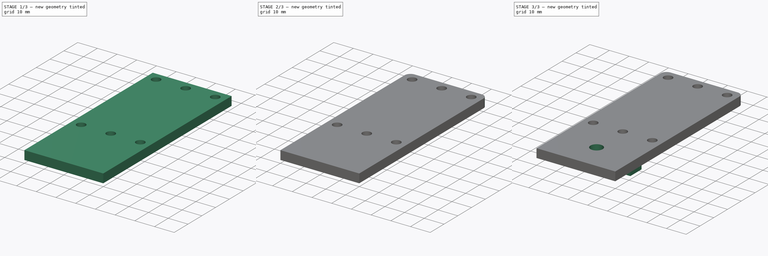
[diagram: build sequence overview — one tinted view per stage of 3, left to right]
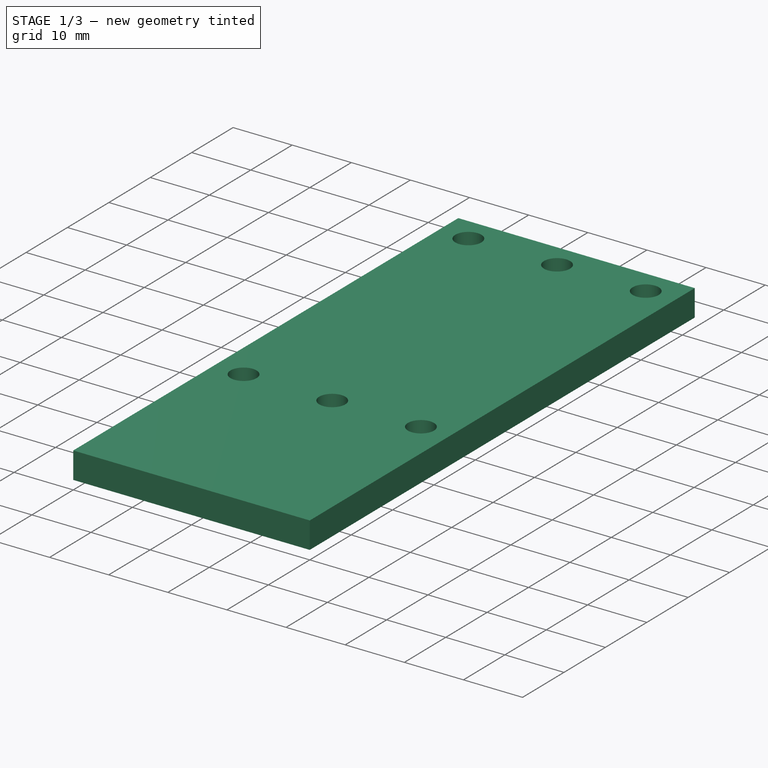
[diagram: stage 1 of 3 — iso view after this stage's code; geometry added in this stage tinted green]
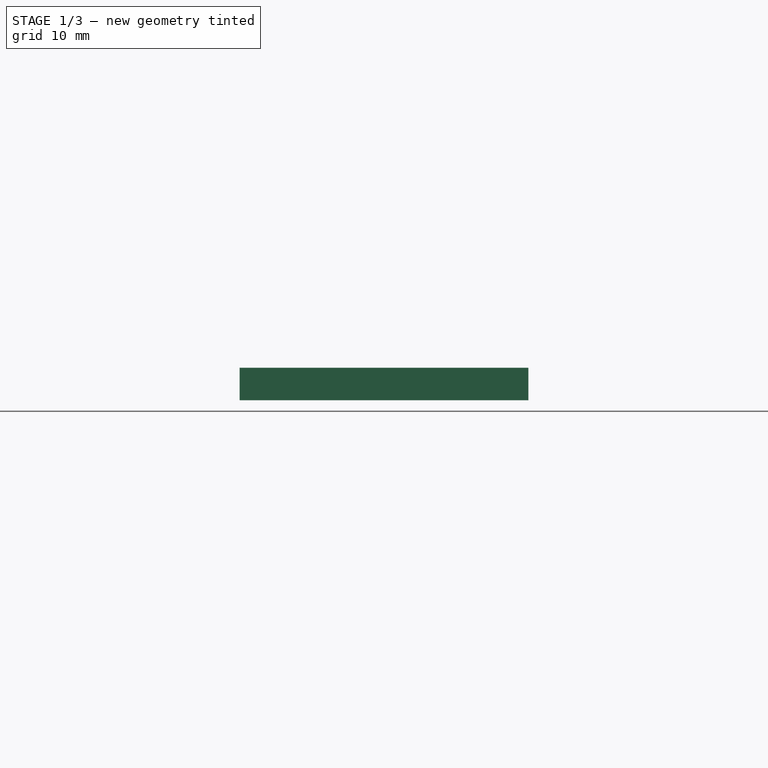
[diagram: stage 1 of 3 — front view after this stage's code; geometry added in this stage tinted green]
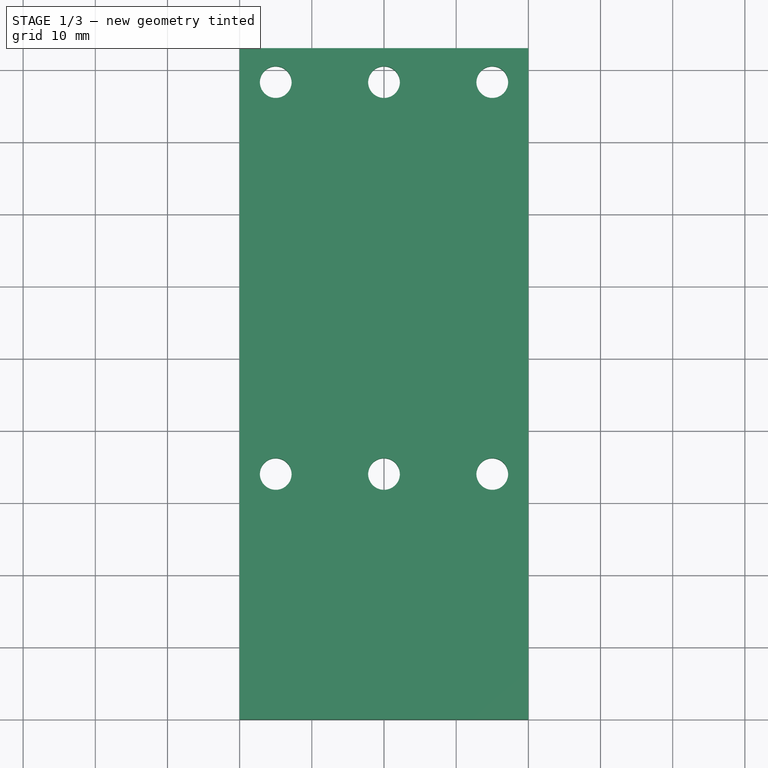
[diagram: stage 1 of 3 — top view after this stage's code; geometry added in this stage tinted green]
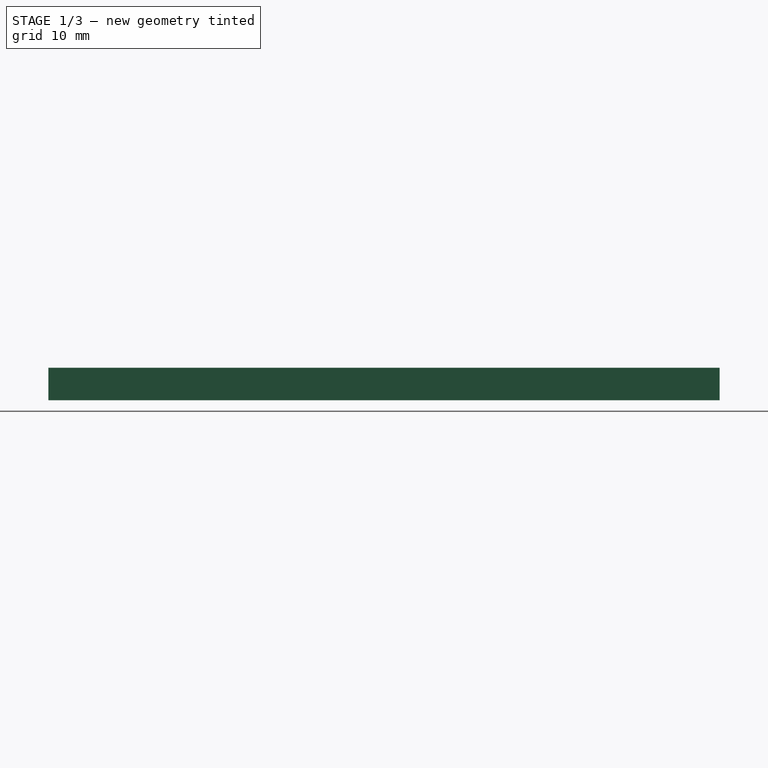
[diagram: stage 1 of 3 — right view after this stage's code; geometry added in this stage tinted green]
FCSTD DOCUMENT  (FreeCAD 0.19R)
Label: extruder_holder
License: All rights reserved
LicenseURL: http://en.wikipedia.org/wiki/All_rights_reserved
objects: Sketcher::SketchObject×4, PartDesign::Pad×2, PartDesign::Pocket×2, PartDesign::Fillet×1, PartDesign::Body×1
note: 15 computed .brp shape members not serialized (recipe doc carries the construction recipe); baked Part::Feature solids carry a one-line shape summary decoded from their .brp

FEATURE [Sketcher::SketchObject] Sketch
  MapMode = 5
  Support = -> [XY_Plane]
  sketch-geometry (4):
    g0: LineSegment StartX=-20 StartY=63 StartZ=0 EndX=20 EndY=63 EndZ=0
    g1: LineSegment StartX=20 StartY=63 StartZ=0 EndX=20 EndY=-30 EndZ=0
    g2: LineSegment StartX=20 StartY=-30 StartZ=0 EndX=-20 EndY=-30 EndZ=0
    g3: LineSegment StartX=-20 StartY=-30 StartZ=0 EndX=-20 EndY=63 EndZ=0
  constraints (11):
    c: Coincident(g0,g1)
    c: Coincident(g1,g2)
    c: Coincident(g2,g3)
    c: Coincident(g3,g0)
    c: Horizontal(g0)
    c: Vertical(g1)
    c: Vertical(g3)
    c: DistanceY(g-1,g2) = -30
    c: DistanceX(g2,g2) = 40
    c: DistanceY(g-1,g0) = 63
    c: Symmetric(g1,g2,g-2)
FEATURE [PartDesign::Pad] Pad
  Direction = (1,1,1)
  Length = 4.5
  Length2 = 100
  Profile = -> Sketch
  Type = 0
FEATURE [Sketcher::SketchObject] Sketch001
  ExternalGeometry = -> [Pad]
  MapMode = 5
  Placement = pos=(0,0,4.5) rot=(0,0,1;0rad)
  Support = -> [Pad]
  sketch-geometry (10):
    g0: LineSegment [constr] StartX=-15 StartY=58.3 StartZ=0 EndX=15 EndY=58.3 EndZ=0
    g1: LineSegment [constr] StartX=15 StartY=58.3 StartZ=0 EndX=15 EndY=4 EndZ=0
    g2: LineSegment [constr] StartX=15 StartY=4 StartZ=0 EndX=-15 EndY=4 EndZ=0
    g3: LineSegment [constr] StartX=-15 StartY=4 StartZ=0 EndX=-15 EndY=58.3 EndZ=0
    g4: Circle CenterX=-15 CenterY=58.3 CenterZ=0 NormalX=0 NormalY=0 NormalZ=1 AngleXU=0 Radius=2.2
    g5: Circle CenterX=15 CenterY=58.3 CenterZ=0 NormalX=0 NormalY=0 NormalZ=1 AngleXU=0 Radius=2.2
    g6: Circle CenterX=0 CenterY=58.3 CenterZ=0 NormalX=0 NormalY=0 NormalZ=1 AngleXU=0 Radius=2.2
    g7: Circle CenterX=-15 CenterY=4 CenterZ=0 NormalX=0 NormalY=0 NormalZ=1 AngleXU=0 Radius=2.2
    g8: Circle CenterX=0 CenterY=4 CenterZ=0 NormalX=0 NormalY=0 NormalZ=1 AngleXU=0 Radius=2.2
    g9: Circle CenterX=15 CenterY=4 CenterZ=0 NormalX=0 NormalY=0 NormalZ=1 AngleXU=0 Radius=2.2
  constraints (25):
    c: Coincident(g0,g1)
    c: Coincident(g1,g2)
    c: Coincident(g2,g3)
    c: Coincident(g3,g0)
    c: Horizontal(g0)
    c: Vertical(g1)
    c: Vertical(g3)
    c: DistanceY(g-1,g2) = 4
    c: Distance(g1) = 54.3
    c: Symmetric(g1,g2,g-2)
    c: Distance(g2,g-4) = 5
    c: Coincident(g4,g0)
    c: Coincident(g5,g0)
    c: PointOnObject(g6,g-2)
    c: Coincident(g7,g2)
    c: PointOnObject(g8,g-2)
    c: Coincident(g9,g1)
    c: Radius(g6) = 2.2
    c: Equal(g6,g5)
    c: Equal(g6,g4)
    c: Equal(g6,g7)
    c: Equal(g6,g8)
    c: Equal(g6,g9)
    c: PointOnObject(g8,g2)
    c: PointOnObject(g6,g0)
FEATURE [PartDesign::Pocket] Pocket
  BaseFeature = -> Pad
  Length = 5
  Length2 = 100
  Profile = -> Sketch001
  Type = 0
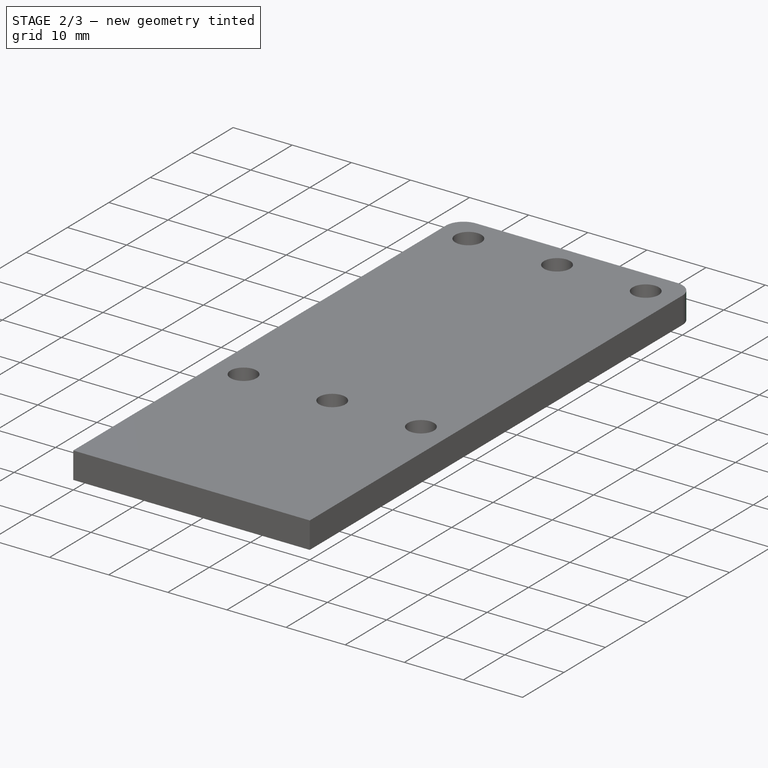
[diagram: stage 2 of 3 — iso view after this stage's code; geometry added in this stage tinted green]
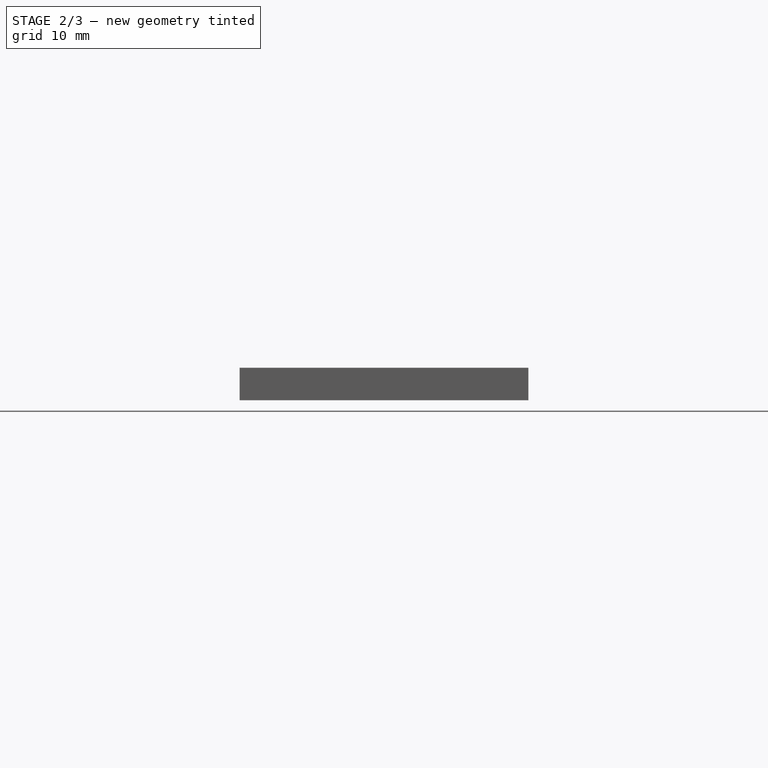
[diagram: stage 2 of 3 — front view after this stage's code; geometry added in this stage tinted green]
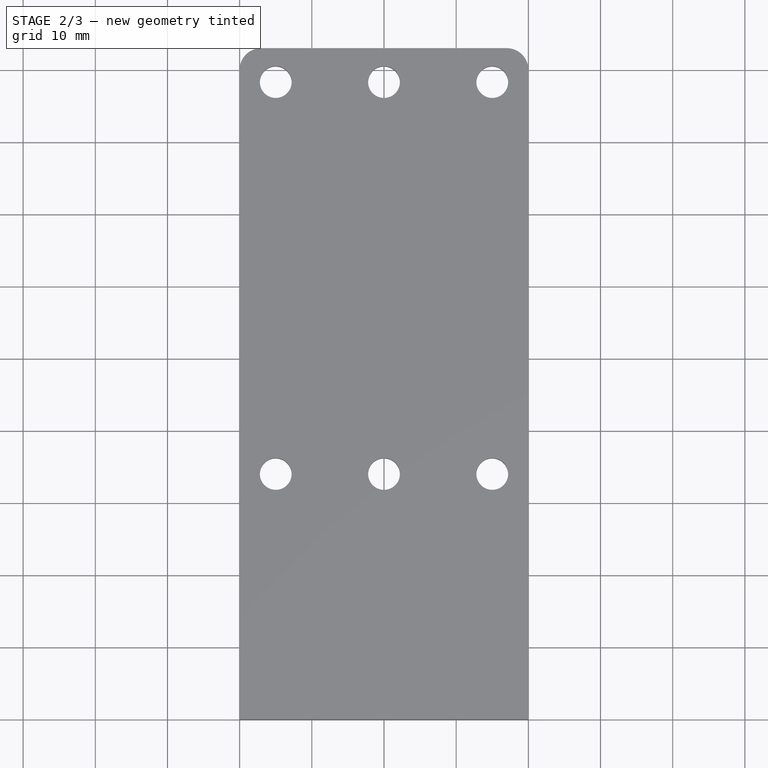
[diagram: stage 2 of 3 — top view after this stage's code; geometry added in this stage tinted green]
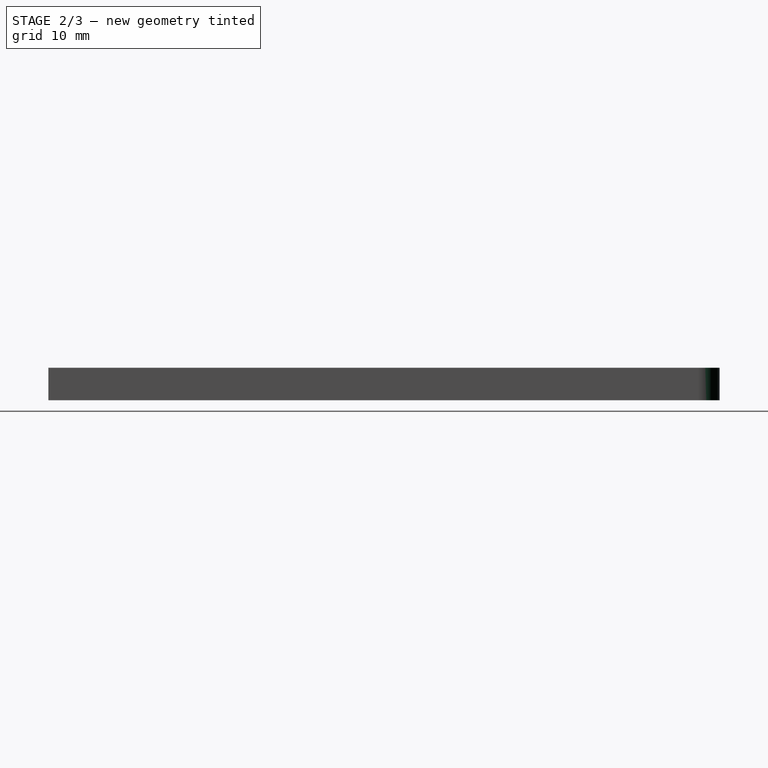
[diagram: stage 2 of 3 — right view after this stage's code; geometry added in this stage tinted green]
FEATURE [PartDesign::Fillet] Fillet
  Base = -> Pocket [Edge2,Edge1]
  BaseFeature = -> Pocket
  Radius = 3
  SupportTransform = false
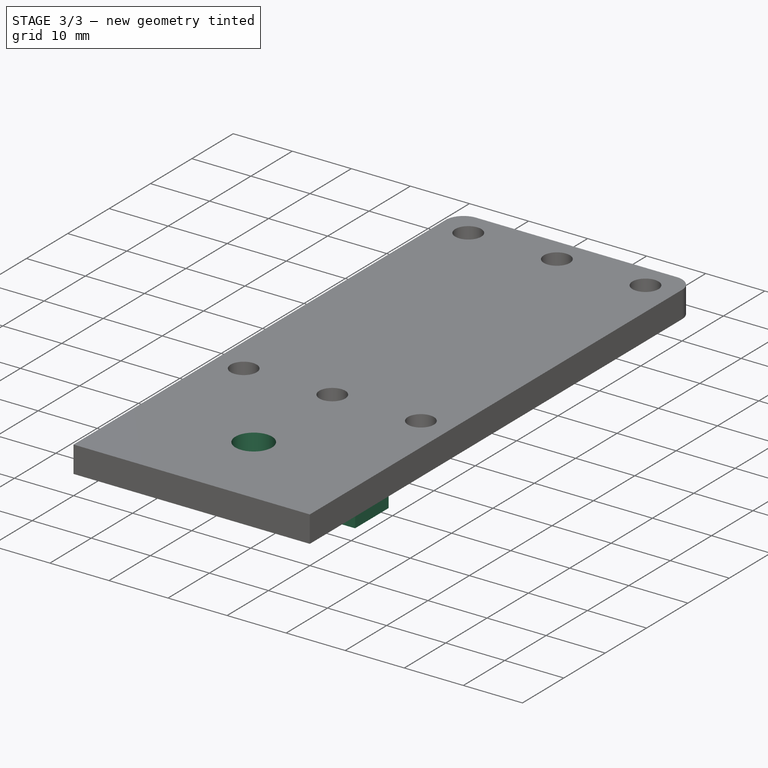
[diagram: stage 3 of 3 — iso view after this stage's code; geometry added in this stage tinted green]
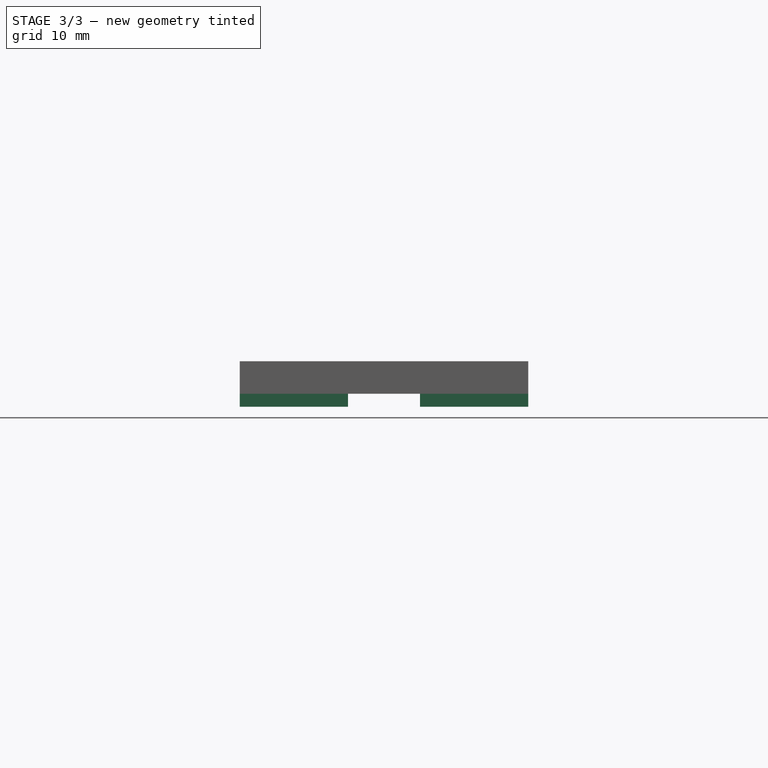
[diagram: stage 3 of 3 — front view after this stage's code; geometry added in this stage tinted green]
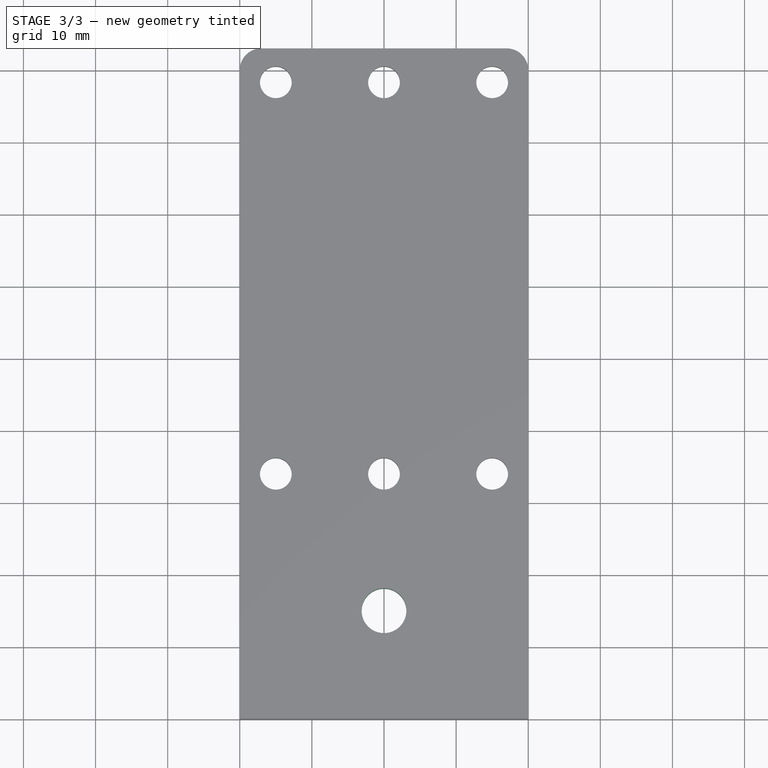
[diagram: stage 3 of 3 — top view after this stage's code; geometry added in this stage tinted green]
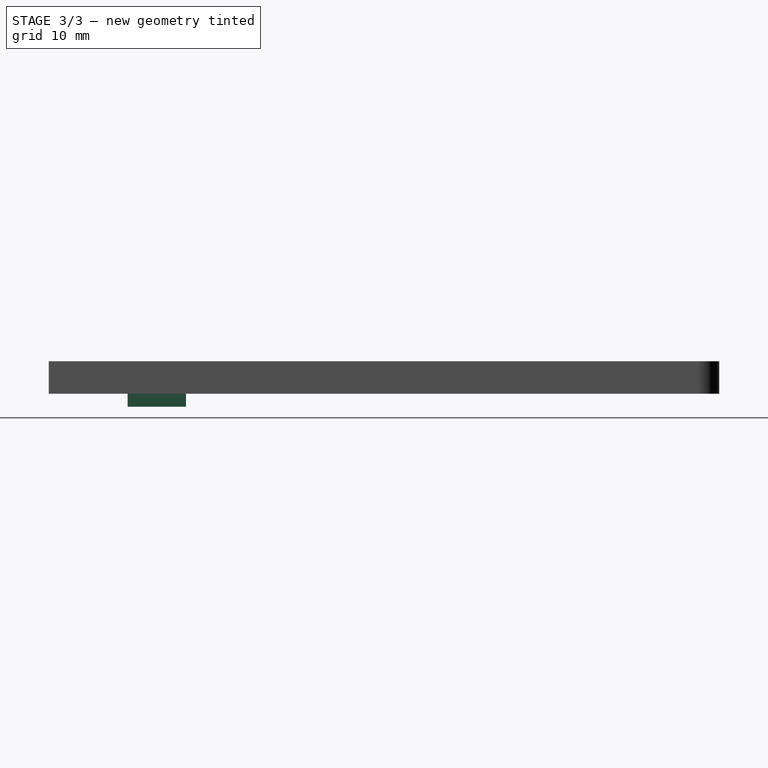
[diagram: stage 3 of 3 — right view after this stage's code; geometry added in this stage tinted green]
FEATURE [Sketcher::SketchObject] Sketch002
  MapMode = 5
  Placement = pos=(0,0,4.5) rot=(0,0,1;0rad)
  Support = -> [Fillet]
  sketch-geometry (1):
    g0: Circle CenterX=0 CenterY=-15 CenterZ=0 NormalX=0 NormalY=0 NormalZ=1 AngleXU=0 Radius=3.1
  constraints (3):
    c: PointOnObject(g0,g-2)
    c: DistanceY(g0) = -15
    c: Radius(g0) = 3.1
FEATURE [PartDesign::Pocket] Pocket001
  BaseFeature = -> Fillet
  Length = 5
  Length2 = 100
  Profile = -> Sketch002
  Type = 0
FEATURE [Sketcher::SketchObject] Sketch003
  ExternalGeometry = -> [Pocket001]
  MapMode = 5
  Placement = pos=(0,0,0) rot=(1,0,0;3.14159rad)
  Support = -> [Pocket001]
  sketch-geometry (9):
    g0: LineSegment [constr] StartX=-20 StartY=15 StartZ=0 EndX=20 EndY=15 EndZ=0
    g1: LineSegment StartX=-20 StartY=19.05 StartZ=0 EndX=-5 EndY=19.05 EndZ=0
    g2: LineSegment StartX=-5 StartY=19.05 StartZ=0 EndX=-5 EndY=10.95 EndZ=0
    g3: LineSegment StartX=-5 StartY=10.95 StartZ=0 EndX=-20 EndY=10.95 EndZ=0
    g4: LineSegment StartX=-20 StartY=10.95 StartZ=0 EndX=-20 EndY=19.05 EndZ=0
    g5: LineSegment StartX=20 StartY=19.05 StartZ=0 EndX=5 EndY=19.05 EndZ=0
    g6: LineSegment StartX=5 StartY=19.05 StartZ=0 EndX=5 EndY=10.95 EndZ=0
    g7: LineSegment StartX=5 StartY=10.95 StartZ=0 EndX=20 EndY=10.95 EndZ=0
    g8: LineSegment StartX=20 StartY=10.95 StartZ=0 EndX=20 EndY=19.05 EndZ=0
  constraints (26):
    c: PointOnObject(g0,g-3)
    c: PointOnObject(g0,g-4)
    c: Horizontal(g0)
    c: PointOnObject(g-5,g0)
    c: Coincident(g1,g2)
    c: Coincident(g2,g3)
    c: Coincident(g3,g4)
    c: Coincident(g4,g1)
    c: Horizontal(g1)
    c: Horizontal(g3)
    c: Vertical(g4)
    c: PointOnObject(g1,g-3)
    c: Coincident(g5,g6)
    c: Coincident(g6,g7)
    c: Coincident(g7,g8)
    c: Coincident(g8,g5)
    c: Horizontal(g5)
    c: Horizontal(g7)
    c: Vertical(g6)
    c: Vertical(g8)
    c: PointOnObject(g5,g-4)
    c: Symmetric(g6,g2,g-2)
    c: Equal(g2,g6)
    c: Distance(g4) = 8.1
    c: Distance(g1,g5) = 10
    c: Symmetric(g1,g2,g0)
FEATURE [PartDesign::Pad] Pad001
  BaseFeature = -> Pocket001
  Direction = (1,1,1)
  Length = 1.8
  Length2 = 100
  Profile = -> Sketch003
  Type = 0
FEATURE [PartDesign::Body] Body
  Group = -> [Sketch,Pad,Sketch001,Pocket,Fillet,Sketch002,Pocket001,Sketch003,Pad001]
  Origin = -> Origin
  Tip = -> Pad001
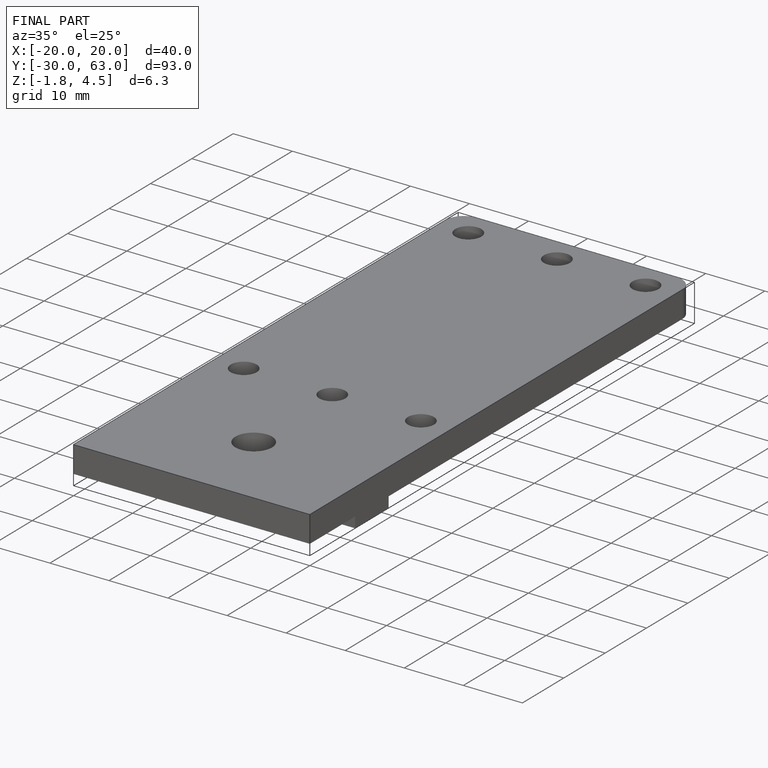
[diagram: finished part — iso view with bounding-box wireframe]
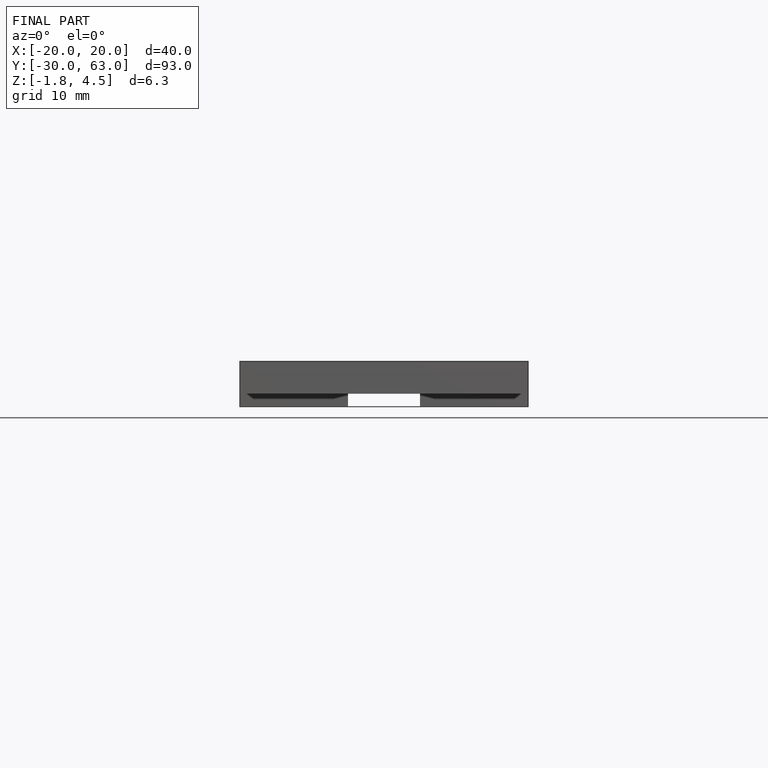
[diagram: finished part — front view with bounding-box wireframe]
